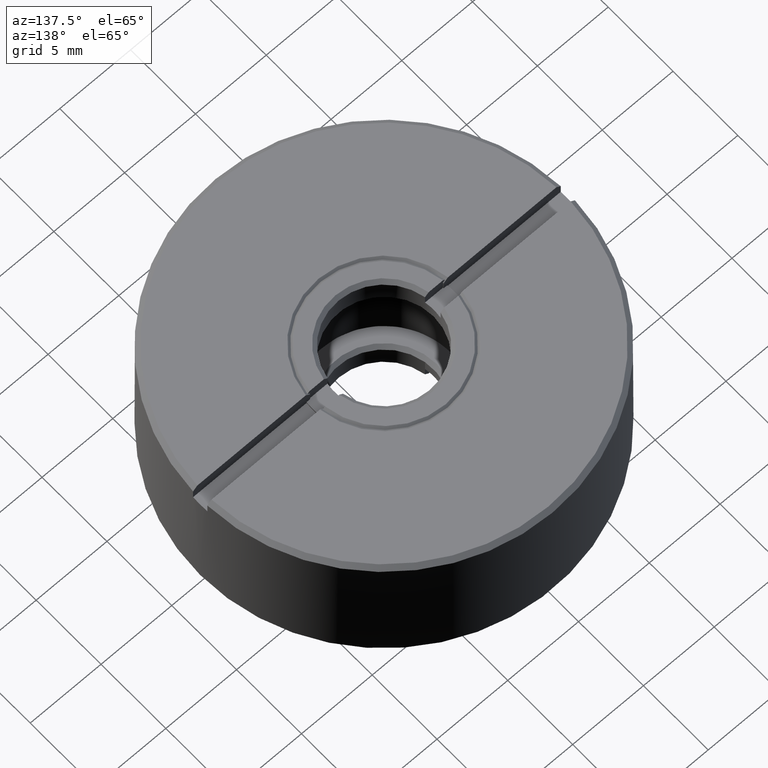
[diagram: clean part render]
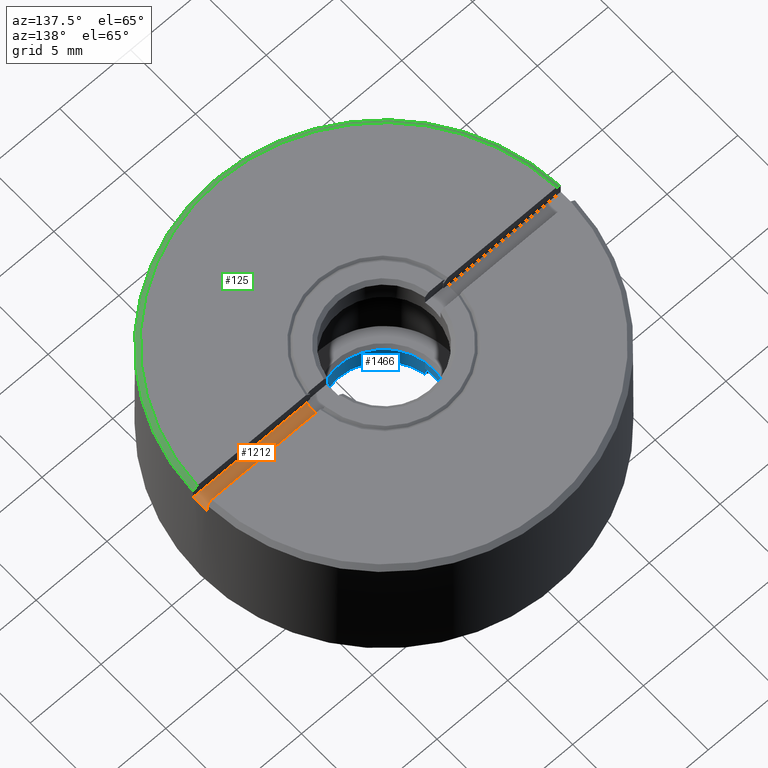
[diagram: same view with three faces highlighted in distinct colors, each labeled with its STEP entity id]
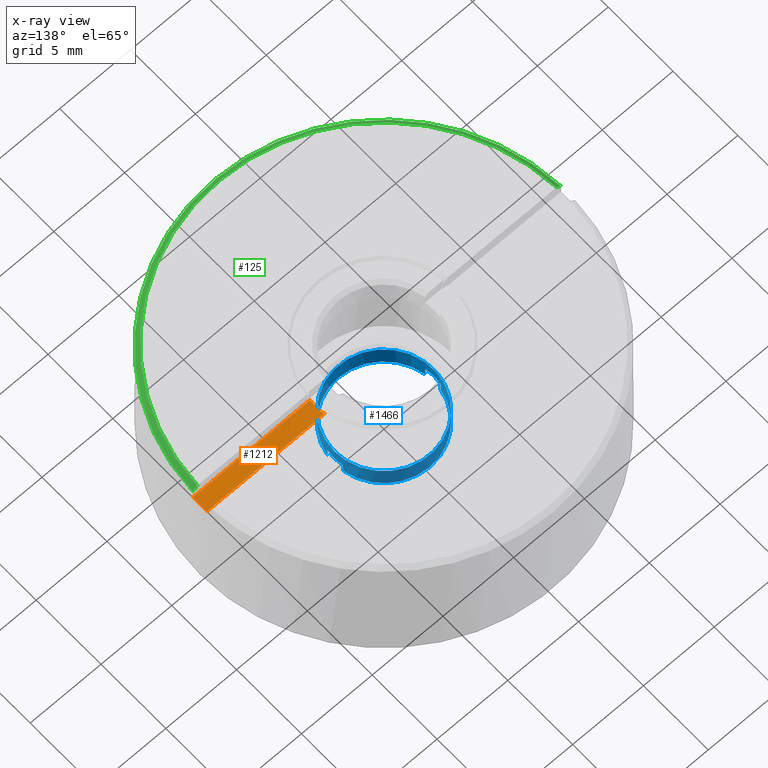
[diagram: x-ray of the same camera — body ghosted, the three highlighted faces saturated]
A machine part, auxiliary view with three faces highlighted in distinct colors.
The next image is the same camera in x-ray (body ghosted, the three faces saturated) — at least one of them is partly hidden behind the body in this view.
Their STEP definitions:

[orange] entity #1212 — the highlighted planar face has unit normal (0, 0, 1).
#49 = DIRECTION ( 'NONE',  ( -1.000000000000000000, -0.000000000000000000, -0.000000000000000000 ) ) ;
#55 = CARTESIAN_POINT ( 'NONE',  ( 4.718050444834180013, 0.5500000000000000444, 4.000000000000000000 ) ) ;
#119 = FACE_OUTER_BOUND ( 'NONE', #962, .T. ) ;
#127 = DIRECTION ( 'NONE',  ( 0.000000000000000000, 0.000000000000000000, 1.000000000000000000 ) ) ;
#160 = ORIENTED_EDGE ( 'NONE', *, *, #567, .T. ) ;
#185 = DIRECTION ( 'NONE',  ( -1.000000000000000000, 1.687538997430237941E-14, 0.000000000000000000 ) ) ;
#186 = CIRCLE ( 'NONE', #316, 4.750000000000000000 ) ;
#316 = AXIS2_PLACEMENT_3D ( 'NONE', #883, #903, #1293 ) ;
#436 = ORIENTED_EDGE ( 'NONE', *, *, #1090, .T. ) ;
#442 = CARTESIAN_POINT ( 'NONE',  ( 12.98836017363239037, -0.5500000000000000444, 4.000000000000000000 ) ) ;
#506 = EDGE_CURVE ( 'NONE', #1129, #691, #186, .T. ) ;
#567 = EDGE_CURVE ( 'NONE', #1107, #1475, #1122, .T. ) ;
#610 = ORIENTED_EDGE ( 'NONE', *, *, #506, .T. ) ;
#626 = ORIENTED_EDGE ( 'NONE', *, *, #899, .T. ) ;
#690 = CARTESIAN_POINT ( 'NONE',  ( 12.98836017363239037, 0.5500000000000000444, 4.000000000000000000 ) ) ;
#691 = VERTEX_POINT ( 'NONE', #856 ) ;
#727 = AXIS2_PLACEMENT_3D ( 'NONE', #1028, #1063, #185 ) ;
#740 = CARTESIAN_POINT ( 'NONE',  ( 0.000000000000000000, 0.000000000000000000, 4.000000000000000000 ) ) ;
#846 = DIRECTION ( 'NONE',  ( 1.000000000000000000, 0.000000000000000000, -0.000000000000000000 ) ) ;
#856 = CARTESIAN_POINT ( 'NONE',  ( 4.718050444834180013, -0.5500000000000000444, 4.000000000000000888 ) ) ;
#883 = CARTESIAN_POINT ( 'NONE',  ( 0.000000000000000000, 0.000000000000000000, 4.000000000000000888 ) ) ;
#899 = EDGE_CURVE ( 'NONE', #1475, #1129, #1144, .T. ) ;
#903 = DIRECTION ( 'NONE',  ( 0.000000000000000000, 0.000000000000000000, -1.000000000000000000 ) ) ;
#918 = VECTOR ( 'NONE', #1448, 1000.000000000000000 ) ;
#962 = EDGE_LOOP ( 'NONE', ( #160, #626, #610, #436 ) ) ;
#993 = AXIS2_PLACEMENT_3D ( 'NONE', #740, #127, #846 ) ;
#1028 = CARTESIAN_POINT ( 'NONE',  ( 0.000000000000000000, 0.000000000000000000, 4.000000000000000000 ) ) ;
#1063 = DIRECTION ( 'NONE',  ( 0.000000000000000000, 0.000000000000000000, 1.000000000000000000 ) ) ;
#1090 = EDGE_CURVE ( 'NONE', #691, #1107, #1308, .T. ) ;
#1107 = VERTEX_POINT ( 'NONE', #442 ) ;
#1122 = CIRCLE ( 'NONE', #727, 13.00000000000000355 ) ;
#1129 = VERTEX_POINT ( 'NONE', #55 ) ;
#1144 = LINE ( 'NONE', #1259, #1152 ) ;
#1152 = VECTOR ( 'NONE', #49, 1000.000000000000000 ) ;
#1212 = ADVANCED_FACE ( 'NONE', ( #119 ), #1223, .T. ) ;
#1223 = PLANE ( 'NONE',  #993 ) ;
#1259 = CARTESIAN_POINT ( 'NONE',  ( -12.98836017363239037, 0.5500000000000000444, 4.000000000000000000 ) ) ;
#1293 = DIRECTION ( 'NONE',  ( 1.000000000000000000, 0.000000000000000000, 0.000000000000000000 ) ) ;
#1308 = LINE ( 'NONE', #1577, #918 ) ;
#1448 = DIRECTION ( 'NONE',  ( 1.000000000000000000, 0.000000000000000000, 0.000000000000000000 ) ) ;
#1475 = VERTEX_POINT ( 'NONE', #690 ) ;
#1577 = CARTESIAN_POINT ( 'NONE',  ( -12.98836017363239037, -0.5500000000000000444, 4.000000000000000888 ) ) ;

[blue] entity #1466 — the highlighted cylindrical surface (bore or boss wall) has radius 3.5 mm, axis along (0, 0, -1).
#24 = EDGE_CURVE ( 'NONE', #1219, #795, #362, .T. ) ;
#32 = VERTEX_POINT ( 'NONE', #870 ) ;
#54 = EDGE_LOOP ( 'NONE', ( #1195 ) ) ;
#62 = DIRECTION ( 'NONE',  ( -0.000000000000000000, -0.000000000000000000, 1.000000000000000000 ) ) ;
#78 = CARTESIAN_POINT ( 'NONE',  ( 0.000000000000000000, 0.000000000000000000, -3.000000000000000000 ) ) ;
#86 = VECTOR ( 'NONE', #1174, 1000.000000000000000 ) ;
#107 = CARTESIAN_POINT ( 'NONE',  ( 3.499999999974078957, 0.000000000000000000, -3.250000000041382009 ) ) ;
#177 = CARTESIAN_POINT ( 'NONE',  ( 3.448187929912194249, -0.5999999999999998668, -4.100000000000000533 ) ) ;
#202 = ORIENTED_EDGE ( 'NONE', *, *, #24, .F. ) ;
#238 = VECTOR ( 'NONE', #768, 1000.000000000000000 ) ;
#243 = DIRECTION ( 'NONE',  ( -1.000000000000000000, 0.000000000000000000, 0.000000000000000000 ) ) ;
#277 = VERTEX_POINT ( 'NONE', #955 ) ;
#288 = AXIS2_PLACEMENT_3D ( 'NONE', #698, #926, #1084 ) ;
#293 = CARTESIAN_POINT ( 'NONE',  ( 0.000000000000000000, 0.000000000000000000, -4.749999999999999112 ) ) ;
#341 = DIRECTION ( 'NONE',  ( -0.000000000000000000, -0.000000000000000000, 1.000000000000000000 ) ) ;
#349 = EDGE_CURVE ( 'NONE', #1219, #777, #1580, .T. ) ;
#362 = CIRCLE ( 'NONE', #1611, 3.500000000000003109 ) ;
#387 = CARTESIAN_POINT ( 'NONE',  ( 0.000000000000000000, 0.000000000000000000, -4.749999999999999112 ) ) ;
#403 = CARTESIAN_POINT ( 'NONE',  ( -3.448187929912194249, 0.6000000000000000888, -4.100000000000000533 ) ) ;
#433 = DIRECTION ( 'NONE',  ( -1.000000000000000000, 0.000000000000000000, 0.000000000000000000 ) ) ;
#456 = LINE ( 'NONE', #958, #1101 ) ;
#544 = DIRECTION ( 'NONE',  ( -1.000000000000000000, 0.000000000000000000, 0.000000000000000000 ) ) ;
#553 = DIRECTION ( 'NONE',  ( -0.000000000000000000, -0.000000000000000000, 1.000000000000000000 ) ) ;
#595 = EDGE_CURVE ( 'NONE', #1461, #1093, #1167, .T. ) ;
#602 = CIRCLE ( 'NONE', #1516, 3.500000000000003109 ) ;
#622 = VECTOR ( 'NONE', #341, 1000.000000000000000 ) ;
#623 = DIRECTION ( 'NONE',  ( -1.000000000000000000, 0.000000000000000000, 0.000000000000000000 ) ) ;
#686 = EDGE_LOOP ( 'NONE', ( #1089, #874, #202, #1158, #1022, #751, #1083, #1472 ) ) ;
#698 = CARTESIAN_POINT ( 'NONE',  ( 0.000000000000000000, 0.000000000000000000, -3.250000000041382009 ) ) ;
#751 = ORIENTED_EDGE ( 'NONE', *, *, #595, .T. ) ;
#768 = DIRECTION ( 'NONE',  ( 0.000000000000000000, 0.000000000000000000, -1.000000000000000000 ) ) ;
#777 = VERTEX_POINT ( 'NONE', #873 ) ;
#795 = VERTEX_POINT ( 'NONE', #826 ) ;
#826 = CARTESIAN_POINT ( 'NONE',  ( -3.448187929891361136, 0.6000000000000000888, -4.750000000023251623 ) ) ;
#870 = CARTESIAN_POINT ( 'NONE',  ( -3.448187929912765348, -0.5999999999999998668, -4.750000000043776538 ) ) ;
#873 = CARTESIAN_POINT ( 'NONE',  ( 3.448187929912765348, 0.6000000000000000888, -4.099999999999999645 ) ) ;
#874 = ORIENTED_EDGE ( 'NONE', *, *, #875, .T. ) ;
#875 = EDGE_CURVE ( 'NONE', #910, #795, #1023, .T. ) ;
#910 = VERTEX_POINT ( 'NONE', #1266 ) ;
#920 = AXIS2_PLACEMENT_3D ( 'NONE', #1127, #1395, #623 ) ;
#926 = DIRECTION ( 'NONE',  ( 0.000000000000000000, -0.000000000000000000, 1.000000000000000000 ) ) ;
#955 = CARTESIAN_POINT ( 'NONE',  ( -3.448187929912765348, -0.5999999999999998668, -4.099999999999999645 ) ) ;
#958 = CARTESIAN_POINT ( 'NONE',  ( -3.448187929912194249, -0.5999999999999998668, -4.100000000000000533 ) ) ;
#992 = CIRCLE ( 'NONE', #288, 3.499999999974078957 ) ;
#1022 = ORIENTED_EDGE ( 'NONE', *, *, #1526, .F. ) ;
#1023 = LINE ( 'NONE', #403, #238 ) ;
#1042 = EDGE_CURVE ( 'NONE', #1330, #1330, #992, .T. ) ;
#1072 = CARTESIAN_POINT ( 'NONE',  ( 0.000000000000000000, 0.000000000000000000, -4.099999999999999645 ) ) ;
#1083 = ORIENTED_EDGE ( 'NONE', *, *, #1469, .F. ) ;
#1084 = DIRECTION ( 'NONE',  ( 1.000000000000000000, 0.000000000000000000, 0.000000000000000000 ) ) ;
#1089 = ORIENTED_EDGE ( 'NONE', *, *, #1305, .F. ) ;
#1093 = VERTEX_POINT ( 'NONE', #1421 ) ;
#1101 = VECTOR ( 'NONE', #1332, 1000.000000000000000 ) ;
#1127 = CARTESIAN_POINT ( 'NONE',  ( 0.000000000000000000, 0.000000000000000000, -4.099999999999999645 ) ) ;
#1158 = ORIENTED_EDGE ( 'NONE', *, *, #349, .T. ) ;
#1167 = LINE ( 'NONE', #177, #86 ) ;
#1174 = DIRECTION ( 'NONE',  ( 0.000000000000000000, -0.000000000000000000, -1.000000000000000000 ) ) ;
#1184 = CIRCLE ( 'NONE', #1442, 3.500000000000003109 ) ;
#1195 = ORIENTED_EDGE ( 'NONE', *, *, #1042, .T. ) ;
#1206 = AXIS2_PLACEMENT_3D ( 'NONE', #78, #1410, #544 ) ;
#1211 = CARTESIAN_POINT ( 'NONE',  ( 3.448187929912765348, 0.6000000000000000888, -4.750000000043776538 ) ) ;
#1219 = VERTEX_POINT ( 'NONE', #1211 ) ;
#1229 = CIRCLE ( 'NONE', #920, 3.500000000000003109 ) ;
#1257 = EDGE_CURVE ( 'NONE', #32, #277, #456, .T. ) ;
#1266 = CARTESIAN_POINT ( 'NONE',  ( -3.448187929912765348, 0.6000000000000000888, -4.099999999999999645 ) ) ;
#1305 = EDGE_CURVE ( 'NONE', #910, #277, #1229, .T. ) ;
#1323 = CARTESIAN_POINT ( 'NONE',  ( 3.448187929912765348, -0.5999999999999998668, -4.099999999999999645 ) ) ;
#1330 = VERTEX_POINT ( 'NONE', #107 ) ;
#1332 = DIRECTION ( 'NONE',  ( -0.000000000000000000, 0.000000000000000000, 1.000000000000000000 ) ) ;
#1368 = DIRECTION ( 'NONE',  ( -0.000000000000000000, -0.000000000000000000, 1.000000000000000000 ) ) ;
#1395 = DIRECTION ( 'NONE',  ( -0.000000000000000000, -0.000000000000000000, 1.000000000000000000 ) ) ;
#1410 = DIRECTION ( 'NONE',  ( 0.000000000000000000, 0.000000000000000000, -1.000000000000000000 ) ) ;
#1419 = CYLINDRICAL_SURFACE ( 'NONE', #1206, 3.500000000000003109 ) ;
#1421 = CARTESIAN_POINT ( 'NONE',  ( 3.448187929891361136, -0.5999999999999998668, -4.750000000023252511 ) ) ;
#1442 = AXIS2_PLACEMENT_3D ( 'NONE', #293, #62, #433 ) ;
#1446 = FACE_OUTER_BOUND ( 'NONE', #54, .T. ) ;
#1459 = CARTESIAN_POINT ( 'NONE',  ( 3.448187929912194249, 0.6000000000000000888, -4.100000000000000533 ) ) ;
#1461 = VERTEX_POINT ( 'NONE', #1323 ) ;
#1466 = ADVANCED_FACE ( 'NONE', ( #1558, #1446 ), #1419, .F. ) ;
#1469 = EDGE_CURVE ( 'NONE', #32, #1093, #1184, .T. ) ;
#1472 = ORIENTED_EDGE ( 'NONE', *, *, #1257, .T. ) ;
#1516 = AXIS2_PLACEMENT_3D ( 'NONE', #1072, #553, #1542 ) ;
#1526 = EDGE_CURVE ( 'NONE', #1461, #777, #602, .T. ) ;
#1542 = DIRECTION ( 'NONE',  ( -1.000000000000000000, 4.440892098500626162E-15, 0.000000000000000000 ) ) ;
#1558 = FACE_OUTER_BOUND ( 'NONE', #686, .T. ) ;
#1580 = LINE ( 'NONE', #1459, #622 ) ;
#1611 = AXIS2_PLACEMENT_3D ( 'NONE', #387, #1368, #243 ) ;

[green] entity #125 — the highlighted conical surface has half-angle 45 deg.
#58 = CONICAL_SURFACE ( 'NONE', #1486, 13.00000000000000178, 0.7853981633974468357 ) ;
#96 = VERTEX_POINT ( 'NONE', #999 ) ;
#104 = EDGE_LOOP ( 'NONE', ( #1285, #1353, #1334, #900 ) ) ;
#125 = ADVANCED_FACE ( 'NONE', ( #672 ), #58, .T. ) ;
#198 = CARTESIAN_POINT ( 'NONE',  ( 0.000000000000000000, 0.000000000000000000, 5.000000000000001776 ) ) ;
#208 = CARTESIAN_POINT ( 'NONE',  ( 12.88826949536930400, -0.5500000000000000444, 4.800001059946461091 ) ) ;
#215 = B_SPLINE_CURVE_WITH_KNOTS ( 'NONE', 3,
 ( #1325, #208, #1180, #546 ),
 .UNSPECIFIED., .F., .F.,
 ( 4, 4 ),
 ( 0.000000000000000000, 0.0004244587174157763701 ),
 .UNSPECIFIED. ) ;
#219 = CIRCLE ( 'NONE', #421, 12.69999999999998863 ) ;
#284 = VERTEX_POINT ( 'NONE', #348 ) ;
#296 = DIRECTION ( 'NONE',  ( -0.000000000000000000, -0.000000000000000000, -1.000000000000000000 ) ) ;
#333 = B_SPLINE_CURVE_WITH_KNOTS ( 'NONE', 3,
 ( #1532, #413, #569, #1303 ),
 .UNSPECIFIED., .F., .F.,
 ( 4, 4 ),
 ( 2.453269466693398698E-18, 0.0004244587174157714912 ),
 .UNSPECIFIED. ) ;
#334 = CARTESIAN_POINT ( 'NONE',  ( -12.68808496188450619, -0.5500000000000000444, 5.000000000000000888 ) ) ;
#336 = DIRECTION ( 'NONE',  ( -1.000000000000000000, 0.000000000000000000, 0.000000000000000000 ) ) ;
#348 = CARTESIAN_POINT ( 'NONE',  ( -12.98836017363239037, -0.5500000000000000444, 4.699999999999988631 ) ) ;
#402 = VERTEX_POINT ( 'NONE', #508 ) ;
#413 = CARTESIAN_POINT ( 'NONE',  ( -12.78817778314701492, -0.5500000000000000444, 4.900001085019415115 ) ) ;
#421 = AXIS2_PLACEMENT_3D ( 'NONE', #198, #1038, #336 ) ;
#496 = CIRCLE ( 'NONE', #1409, 13.00000000000000355 ) ;
#508 = CARTESIAN_POINT ( 'NONE',  ( 12.98836017363239037, -0.5500000000000000444, 4.699999999999988631 ) ) ;
#546 = CARTESIAN_POINT ( 'NONE',  ( 12.68808496188450441, -0.5500000000000000444, 5.000000000000001776 ) ) ;
#569 = CARTESIAN_POINT ( 'NONE',  ( -12.88826949536930400, -0.5500000000000000444, 4.800001059946460202 ) ) ;
#571 = DIRECTION ( 'NONE',  ( -1.000000000000000000, 0.000000000000000000, 0.000000000000000000 ) ) ;
#659 = DIRECTION ( 'NONE',  ( -1.000000000000000000, 0.000000000000000000, 0.000000000000000000 ) ) ;
#672 = FACE_OUTER_BOUND ( 'NONE', #104, .T. ) ;
#793 = VERTEX_POINT ( 'NONE', #334 ) ;
#900 = ORIENTED_EDGE ( 'NONE', *, *, #1054, .F. ) ;
#999 = CARTESIAN_POINT ( 'NONE',  ( 12.68808496188450441, -0.5500000000000000444, 5.000000000000001776 ) ) ;
#1037 = DIRECTION ( 'NONE',  ( 0.000000000000000000, 0.000000000000000000, -1.000000000000000000 ) ) ;
#1038 = DIRECTION ( 'NONE',  ( 0.000000000000000000, 0.000000000000000000, -1.000000000000000000 ) ) ;
#1054 = EDGE_CURVE ( 'NONE', #402, #284, #496, .T. ) ;
#1064 = CARTESIAN_POINT ( 'NONE',  ( 0.000000000000000000, 0.000000000000000000, 4.699999999999988631 ) ) ;
#1067 = CARTESIAN_POINT ( 'NONE',  ( 0.000000000000000000, 0.000000000000000000, 4.699999999999987743 ) ) ;
#1128 = EDGE_CURVE ( 'NONE', #402, #96, #215, .T. ) ;
#1180 = CARTESIAN_POINT ( 'NONE',  ( 12.78817778314701314, -0.5500000000000000444, 4.900001085019416003 ) ) ;
#1285 = ORIENTED_EDGE ( 'NONE', *, *, #1128, .T. ) ;
#1303 = CARTESIAN_POINT ( 'NONE',  ( -12.98836017363239037, -0.5500000000000000444, 4.699999999999988631 ) ) ;
#1325 = CARTESIAN_POINT ( 'NONE',  ( 12.98836017363239037, -0.5500000000000000444, 4.699999999999988631 ) ) ;
#1334 = ORIENTED_EDGE ( 'NONE', *, *, #1451, .T. ) ;
#1353 = ORIENTED_EDGE ( 'NONE', *, *, #1578, .T. ) ;
#1409 = AXIS2_PLACEMENT_3D ( 'NONE', #1067, #296, #571 ) ;
#1451 = EDGE_CURVE ( 'NONE', #793, #284, #333, .T. ) ;
#1486 = AXIS2_PLACEMENT_3D ( 'NONE', #1064, #1037, #659 ) ;
#1532 = CARTESIAN_POINT ( 'NONE',  ( -12.68808496188450619, -0.5500000000000000444, 5.000000000000000888 ) ) ;
#1578 = EDGE_CURVE ( 'NONE', #96, #793, #219, .T. ) ;